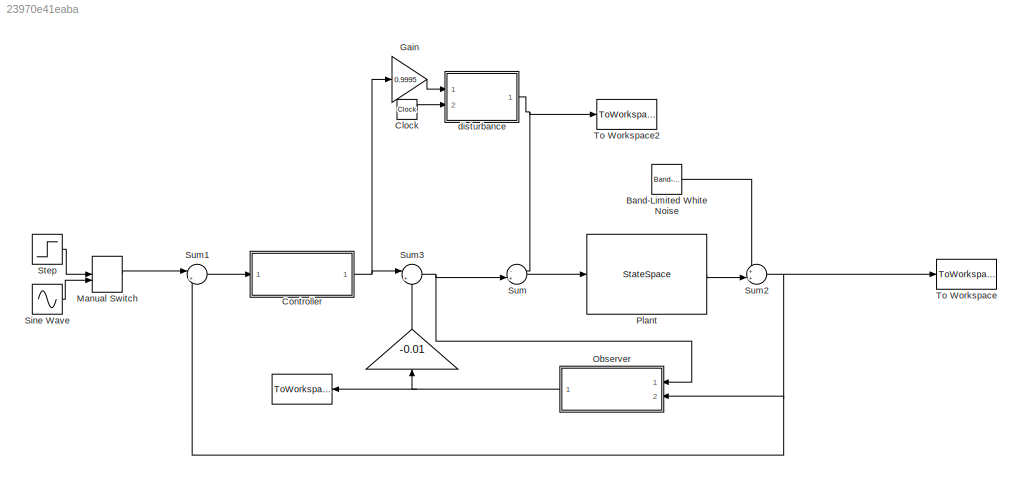
MODEL slx_23970e41eaba
KIND model
CONFIG AbsTol = auto
CONFIG FixedStep = auto
CONFIG MaxStep = auto
CONFIG MinStep = auto
CONFIG RelTol = 1e-3
CONFIG SampleTimeConstraint = Unconstrained
CONFIG Solver = VariableStepAuto
CONFIG SolverMode = Auto
CONFIG SolverName = VariableStepAuto
CONFIG StartTime = 0.0
CONFIG StopTime = 20
BLOCK [Gain]  
  Gain = -0.01
  OutDataTypeStr = Inherit: Inherit via internal rule
  ParamDataTypeStr = Inherit: Inherit via internal rule
  SaturateOnIntegerOverflow = off
BLOCK [ToWorkspace]   
  FixptAsFi = on
  MaxDataPoints = inf
  Ports = [1]
  SampleTime = -1
  Save2DSignal = 3-D array (concatenate along third dimension)
  VariableName = dhat
BLOCK [Reference] Band-Limited White Noise  REF=simulink/Sources/Band-Limited
White Noise
  Ports = [0, 1]
  SourceBlock = simulink/Sources/Band-Limited\nWhite Noise
  SourceType = Band-Limited White Noise.
BLOCK [Clock] Clock
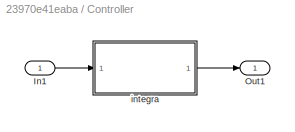
BLOCK [SubSystem] Controller
  Ports = [1, 1]
  RequestExecContextInheritance = off
  Variant = off
BLOCK [Inport] Controller/In1
  IconDisplay = Port number
BLOCK [Outport] Controller/Out1
  IconDisplay = Port number
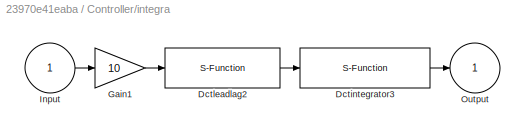
BLOCK [SubSystem] Controller/integra
  Ports = [1, 1]
  RequestExecContextInheritance = off
  Variant = off
BLOCK [S-Function] Controller/integra/Dctintegrator3
  EnableBusSupport = off
  FunctionName = dweakint
  Parameters = f_num, 0.001
  Ports = [1, 1]
  SFunctionDeploymentMode = off
BLOCK [S-Function] Controller/integra/Dctleadlag2
  EnableBusSupport = off
  FunctionName = dleadlag
  Parameters = f_num, f_den, 0.001
  Ports = [1, 1]
  SFunctionDeploymentMode = off
BLOCK [Gain] Controller/integra/Gain1
  Gain = 10
BLOCK [Inport] Controller/integra/Input
  IconDisplay = Port number
BLOCK [Outport] Controller/integra/Output
  IconDisplay = Port number
BLOCK [Gain] Gain
  Gain = 0.9995
  OutDataTypeStr = Inherit: Inherit via internal rule
  ParamDataTypeStr = Inherit: Inherit via internal rule
  SaturateOnIntegerOverflow = off
BLOCK [ManualSwitch] Manual Switch
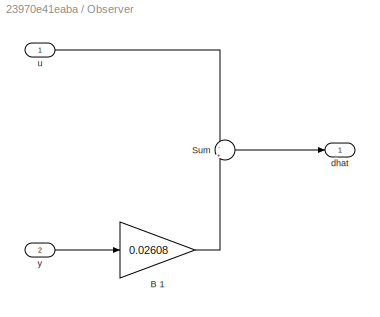
BLOCK [SubSystem] Observer
  Ports = [2, 1]
  RequestExecContextInheritance = off
  Variant = off
BLOCK [Gain] Observer/B 1
  Gain = 0.02608
  OutDataTypeStr = Inherit: Inherit via internal rule
  ParamDataTypeStr = Inherit: Inherit via internal rule
  SaturateOnIntegerOverflow = off
BLOCK [Sum] Observer/Sum
  IconShape = round
  InputSameDT = off
  Inputs = -|+
  OutDataTypeStr = Inherit: Inherit via internal rule
  Ports = [2, 1]
  SaturateOnIntegerOverflow = off
BLOCK [Outport] Observer/dhat
  IconDisplay = Port number
BLOCK [Inport] Observer/u 
  IconDisplay = Port number
BLOCK [Inport] Observer/y 
  IconDisplay = Port number
  Port = 2
BLOCK [StateSpace] Plant
  A = 0
  B = 1/0.02508
  D = 0
  Ports = [1, 1]
  X0 = 0
BLOCK [Sin] Sine Wave
  Ports = [0, 1]
  SampleTime = 0
BLOCK [Step] Step
  SampleTime = 0
BLOCK [Sum] Sum
  IconShape = round
  InputSameDT = off
  Inputs = -+|
  OutDataTypeStr = Inherit: Inherit via internal rule
  Ports = [2, 1]
  SaturateOnIntegerOverflow = off
BLOCK [Sum] Sum1
  IconShape = round
  InputSameDT = off
  Inputs = |+-
  OutDataTypeStr = Inherit: Inherit via internal rule
  Ports = [2, 1]
  SaturateOnIntegerOverflow = off
BLOCK [Sum] Sum2
  IconShape = round
  InputSameDT = off
  Inputs = ++|
  OutDataTypeStr = Inherit: Inherit via internal rule
  Ports = [2, 1]
  SaturateOnIntegerOverflow = off
BLOCK [Sum] Sum3
  IconShape = round
  InputSameDT = off
  Inputs = |++
  OutDataTypeStr = Inherit: Inherit via internal rule
  Ports = [2, 1]
  SaturateOnIntegerOverflow = off
BLOCK [ToWorkspace] To Workspace
  FixptAsFi = on
  MaxDataPoints = inf
  Ports = [1]
  SampleTime = -1
  Save2DSignal = 3-D array (concatenate along third dimension)
  VariableName = y
BLOCK [ToWorkspace] To Workspace2
  FixptAsFi = on
  MaxDataPoints = inf
  Ports = [1]
  SampleTime = -1
  Save2DSignal = 3-D array (concatenate along third dimension)
  VariableName = d
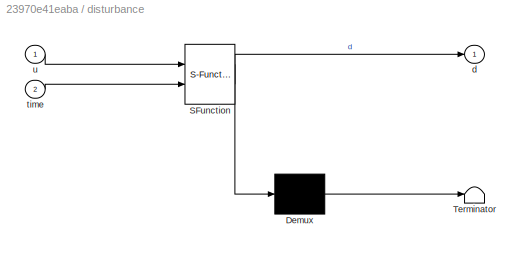
BLOCK [SubSystem] disturbance
  ErrorFcn = Stateflow.Translate.translate
  PermitHierarchicalResolution = ExplicitOnly
  Ports = [2, 1]
  RequestExecContextInheritance = off
  SFBlockType = MATLAB Function
  TreatAsAtomicUnit = on
  Variant = off
BLOCK [Demux] disturbance/ Demux 
  Outputs = 1
  Ports = [1, 1]
BLOCK [S-Function] disturbance/ SFunction 
  EnableBusSupport = on
  FunctionName = sf_sfun
  PortCounts = [2 2]
  Ports = [2, 2]
  SFunctionDeploymentMode = off
  Tag = Stateflow S-Function rollobserver 2
BLOCK [Terminator] disturbance/ Terminator 
BLOCK [Outport] disturbance/d
  IconDisplay = Port number
BLOCK [Inport] disturbance/time
  IconDisplay = Port number
  Port = 2
BLOCK [Inport] disturbance/u
  IconDisplay = Port number
LINE  :1 -> Sum3:2
LINE Band-Limited White Noise:1 -> Sum2:1
LINE Clock:1 -> disturbance:2
LINE Controller/In1:1 -> Controller/integra:1
LINE Controller/integra/Dctintegrator3:1 -> Controller/integra/Output:1
LINE Controller/integra/Dctleadlag2:1 -> Controller/integra/Dctintegrator3:1
LINE Controller/integra/Gain1:1 -> Controller/integra/Dctleadlag2:1
LINE Controller/integra/Input:1 -> Controller/integra/Gain1:1
LINE Controller/integra:1 -> Controller/Out1:1
NET Controller:1 -> Gain:1, Sum3:1
LINE Gain:1 -> disturbance:1
LINE Manual Switch:1 -> Sum1:1
LINE Observer/B 1:1 -> Observer/Sum:2
LINE Observer/Sum:1 -> Observer/dhat:1
LINE Observer/u :1 -> Observer/Sum:1
LINE Observer/y :1 -> Observer/B 1:1
NET Observer:1 ->   :1,  :1
LINE Plant:1 -> Sum2:2
LINE Sine Wave:1 -> Manual Switch:2
LINE Step:1 -> Manual Switch:1
LINE Sum1:1 -> Controller:1
NET Sum2:1 -> Observer:2, Sum1:2, To Workspace:1
NET Sum3:1 -> Observer:1, Sum:2
LINE Sum:1 -> Plant:1
NET disturbance:1 -> Sum:1, To Workspace2:1
note: NET lines group one-source signal fan-out (src -> all destinations, sorted); 1:1 wires keep LINE
CHART disturbance states=1 transitions=1
  STATE_LABEL 'eML_blk_kernel()'
  STATE_LABEL 'SCRIPT:\nfunction d  = disturbance(u,time)\n%#codegen\nd=0;\nif time >= 5.5\n    d = u;\nend\n'
